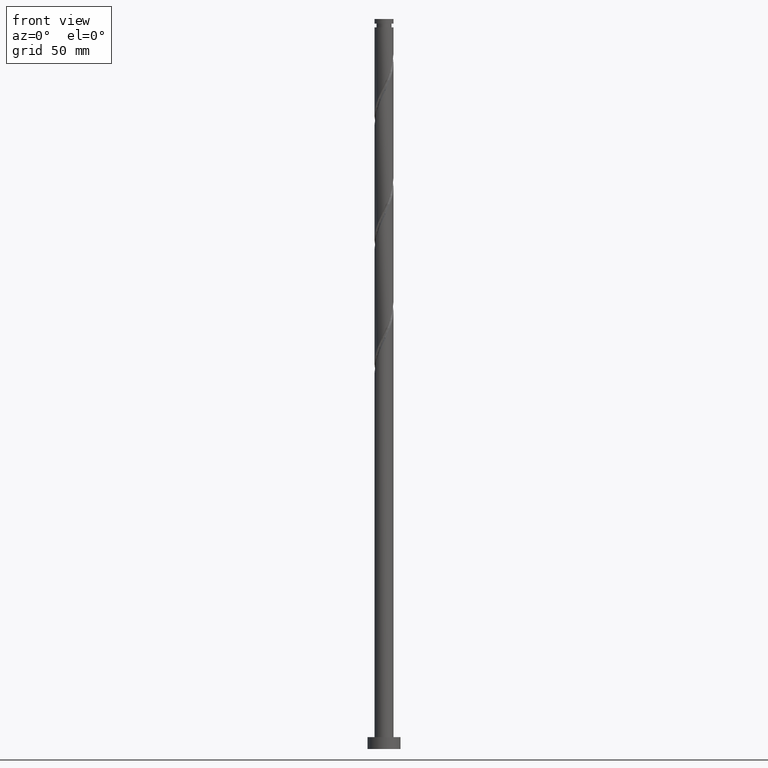
[diagram: clean part render]
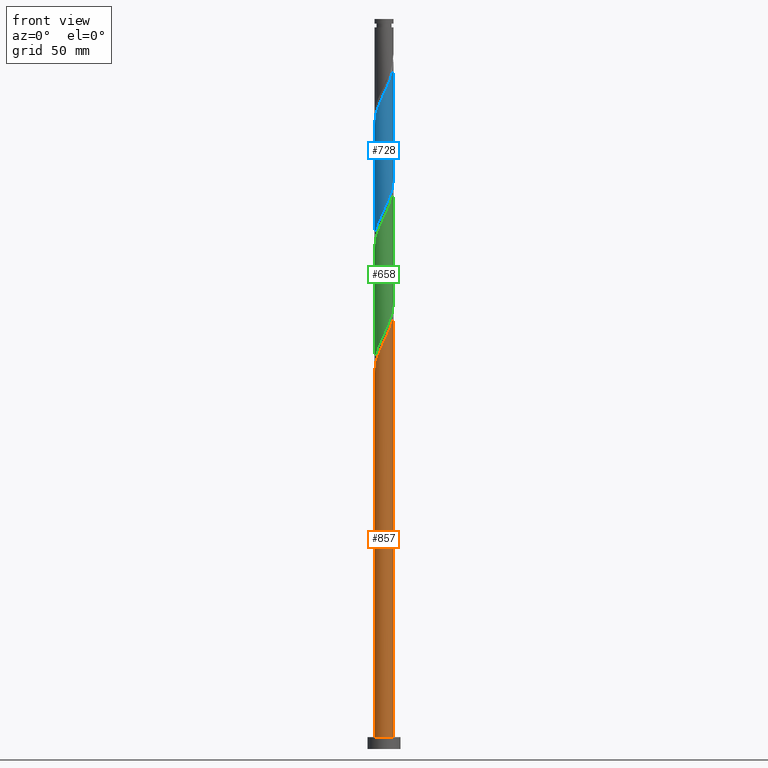
[diagram: same view with three faces highlighted in distinct colors, each labeled with its STEP entity id]
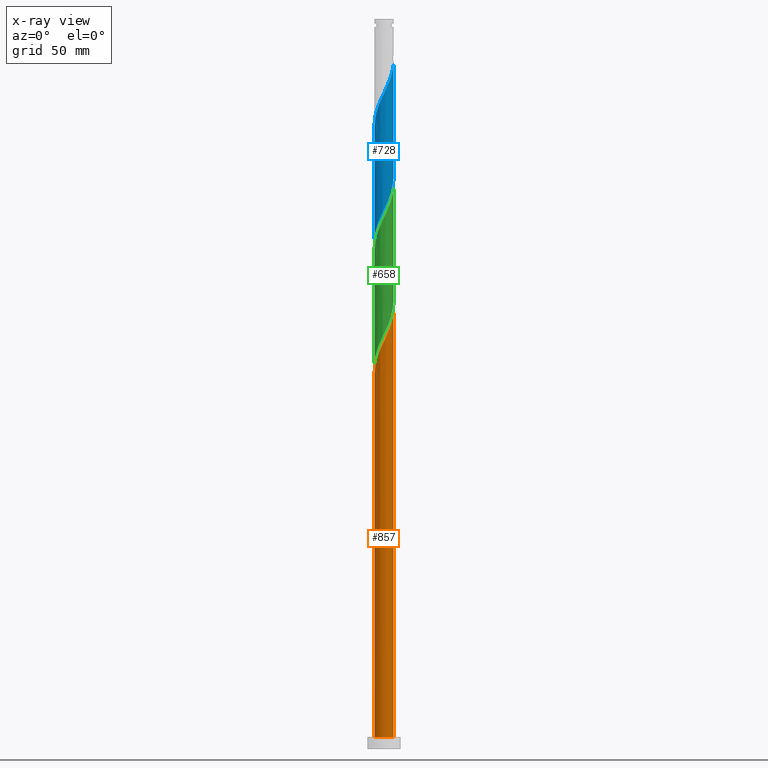
[diagram: x-ray of the same camera — body ghosted, the three highlighted faces saturated]
A machine part, front view with three faces highlighted in distinct colors.
The next image is the same camera in x-ray (body ghosted, the three faces saturated) — at least one of them is partly hidden behind the body in this view.
Their STEP definitions:

[orange] entity #857 — the highlighted cylindrical surface (edge-blend (fillet) strip) has radius 4 mm, axis along (-0, -0, -1).
#21 = CARTESIAN_POINT ( 'NONE',  ( 4.000000000000005329, 8.507690907269842176E-16, 185.6489505680038405 ) ) ;
#75 = CARTESIAN_POINT ( 'NONE',  ( -4.000000000000000000, 0.000000000000000000, 5.000000000000000000 ) ) ;
#86 = ORIENTED_EDGE ( 'NONE', *, *, #1697, .T. ) ;
#109 = CARTESIAN_POINT ( 'NONE',  ( -2.568487795263851403, -3.066410025678348195, 166.6984676459099433 ) ) ;
#114 = CARTESIAN_POINT ( 'NONE',  ( 0.000000000000000000, 0.000000000000000000, 5.000000000000000000 ) ) ;
#128 = CARTESIAN_POINT ( 'NONE',  ( 4.000000000000005329, -0.04813158866556942889, 185.5485878797787507 ) ) ;
#172 = EDGE_CURVE ( 'NONE', #1858, #399, #245, .T. ) ;
#239 = CARTESIAN_POINT ( 'NONE',  ( -4.000000000000000888, -0.4020151261036992163, 160.2372216469674129 ) ) ;
#245 = LINE ( 'NONE', #1870, #1467 ) ;
#249 = CARTESIAN_POINT ( 'NONE',  ( -3.458872505219860560, -2.058961887652578593, 163.8859676459098296 ) ) ;
#277 = CARTESIAN_POINT ( 'NONE',  ( 1.237667874093734355, -3.830313472238020545, 175.1359676459099433 ) ) ;
#281 = AXIS2_PLACEMENT_3D ( 'NONE', #1468, #412, #1756 ) ;
#361 = VERTEX_POINT ( 'NONE', #1432 ) ;
#390 = EDGE_LOOP ( 'NONE', ( #731, #904, #86, #1156 ) ) ;
#399 = VERTEX_POINT ( 'NONE', #820 ) ;
#412 = DIRECTION ( 'NONE',  ( -0.000000000000000000, -0.000000000000000000, -1.000000000000000000 ) ) ;
#415 = CARTESIAN_POINT ( 'NONE',  ( 2.417986421170497557, -3.186430866508033422, 177.9484676459100001 ) ) ;
#451 = CARTESIAN_POINT ( 'NONE',  ( -0.09624924134435053347, -3.998841842776566846, 172.3234676459099433 ) ) ;
#461 = CARTESIAN_POINT ( 'NONE',  ( 2.058961887652578593, -3.458872505219860560, 177.0109676459098864 ) ) ;
#530 =( BOUNDED_CURVE ( )  B_SPLINE_CURVE ( 2, ( #1303, #239, #1876, #673, #1863, #249, #697, #1596, #109, #1896, #565, #1162, #1927, #1194, #451, #739, #1051, #277, #584, #461, #415, #727, #1336, #1604, #1502, #1749, #1006, #595, #1615, #128, #21 ),
 .UNSPECIFIED., .F., .T. ) 
 B_SPLINE_CURVE_WITH_KNOTS ( ( 3, 2, 2, 2, 2, 2, 2, 2, 2, 2, 2, 2, 2, 2, 2, 3 ),
 ( 0.05453034012992233337, 0.06250000000000000000, 0.07142857142857139685, 0.08035714285714290472, 0.08928571428571430157, 0.09821428571428569843, 0.1071428571428570953, 0.1160714285714286031, 0.1250000000000000000, 0.1339285714285713969, 0.1428571428571429047, 0.1517857142857143016, 0.1607142857142856984, 0.1696428571428570953, 0.1785714285714286031, 0.1795303401299219170 ),
 .UNSPECIFIED. ) 
 CURVE ( )  GEOMETRIC_REPRESENTATION_ITEM ( )  RATIONAL_B_SPLINE_CURVE ( ( 0.9079949616362105180, 0.9039886423360742329, 0.9090909090909405910, 0.9033747362666157965, 0.9090909090909405910, 0.9033747362666157965, 0.9090909090909405910, 0.9033747362666157965, 0.9090909090909405910, 0.9033747362666157965, 0.9090909090909405910, 0.9033747362666157965, 0.9090909090909405910, 0.9033747362666157965, 0.9090909090909405910, 0.9033747362666157965, 0.9090909090909405910, 0.9033747362666157965, 0.9090909090909405910, 0.9033747362666157965, 0.9090909090909405910, 0.9033747362666157965, 0.9090909090909405910, 0.9033747362666157965, 0.9090909090909405910, 0.9033747362666157965, 0.9090909090909405910, 0.9033747362666157965, 0.9090909090909405910, 0.9084770030214824876, 0.9079949616362108511 ) ) 
 REPRESENTATION_ITEM ( '' )  );
#533 = LINE ( 'NONE', #848, #949 ) ;
#539 = DIRECTION ( 'NONE',  ( -0.000000000000000000, -0.000000000000000000, -1.000000000000000000 ) ) ;
#565 = CARTESIAN_POINT ( 'NONE',  ( -1.821750020894129296, -3.561071027285510393, 168.5734676459099148 ) ) ;
#584 = CARTESIAN_POINT ( 'NONE',  ( 1.648314880873156696, -3.644592988728941663, 176.0734676459099433 ) ) ;
#595 = CARTESIAN_POINT ( 'NONE',  ( 3.987997157791141500, -0.5468105079655641854, 184.5109676459099148 ) ) ;
#673 = CARTESIAN_POINT ( 'NONE',  ( -3.830313472238020545, -1.237667874093734355, 162.0109676459099148 ) ) ;
#697 = CARTESIAN_POINT ( 'NONE',  ( -3.186430866508033422, -2.417986421170498001, 164.8234676459098864 ) ) ;
#701 = DIRECTION ( 'NONE',  ( 0.000000000000000000, 0.000000000000000000, 1.000000000000000000 ) ) ;
#727 = CARTESIAN_POINT ( 'NONE',  ( 2.777010954688416078, -2.913989227796204506, 178.8859676459098864 ) ) ;
#731 = ORIENTED_EDGE ( 'NONE', *, *, #172, .F. ) ;
#739 = CARTESIAN_POINT ( 'NONE',  ( 0.3543120252768625633, -4.009686527761988195, 173.2609676459098296 ) ) ;
#820 = CARTESIAN_POINT ( 'NONE',  ( 4.000000000000000000, 4.898587196589412829E-16, 5.000000000000000000 ) ) ;
#848 = CARTESIAN_POINT ( 'NONE',  ( -4.000000000000000000, 0.000000000000000000, 309.0000000000000000 ) ) ;
#853 = DIRECTION ( 'NONE',  ( 1.000000000000000000, 0.000000000000000000, 0.000000000000000000 ) ) ;
#856 = CARTESIAN_POINT ( 'NONE',  ( 4.000000000000005329, 8.507690907269842176E-16, 185.6489505680038405 ) ) ;
#857 = ADVANCED_FACE ( 'NONE', ( #1745 ), #1578, .T. ) ;
#868 = EDGE_CURVE ( 'NONE', #1123, #399, #1118, .T. ) ;
#904 = ORIENTED_EDGE ( 'NONE', *, *, #1764, .F. ) ;
#949 = VECTOR ( 'NONE', #1008, 1000.000000000000000 ) ;
#1006 = CARTESIAN_POINT ( 'NONE',  ( 3.877165057846942986, -0.9836620935111636266, 183.5734676459099148 ) ) ;
#1008 = DIRECTION ( 'NONE',  ( -0.000000000000000000, -0.000000000000000000, -1.000000000000000000 ) ) ;
#1051 = CARTESIAN_POINT ( 'NONE',  ( 0.7959899496852986811, -3.920000000000005258, 174.1984676459100001 ) ) ;
#1118 = CIRCLE ( 'NONE', #1373, 4.000000000000000000 ) ;
#1123 = VERTEX_POINT ( 'NONE', #75 ) ;
#1156 = ORIENTED_EDGE ( 'NONE', *, *, #868, .T. ) ;
#1162 = CARTESIAN_POINT ( 'NONE',  ( -1.420513679056762291, -3.766332957902740475, 169.5109676459098580 ) ) ;
#1194 = CARTESIAN_POINT ( 'NONE',  ( -0.5468105079655638523, -3.987997157791142389, 171.3859676459098580 ) ) ;
#1303 = CARTESIAN_POINT ( 'NONE',  ( -4.000000000000005329, -1.350782503698106338E-15, 159.3989505680038974 ) ) ;
#1336 = CARTESIAN_POINT ( 'NONE',  ( 3.066410025678347750, -2.568487795263851403, 179.8234676459099148 ) ) ;
#1373 = AXIS2_PLACEMENT_3D ( 'NONE', #114, #701, #853 ) ;
#1432 = CARTESIAN_POINT ( 'NONE',  ( -4.000000000000005329, -1.350782503698106338E-15, 159.3989505680038974 ) ) ;
#1467 = VECTOR ( 'NONE', #539, 1000.000000000000000 ) ;
#1468 = CARTESIAN_POINT ( 'NONE',  ( 0.000000000000000000, 0.000000000000000000, 309.0000000000000000 ) ) ;
#1502 = CARTESIAN_POINT ( 'NONE',  ( 3.561071027285511281, -1.821750020894129740, 181.6984676459099148 ) ) ;
#1578 = CYLINDRICAL_SURFACE ( 'NONE', #281, 4.000000000000000000 ) ;
#1596 = CARTESIAN_POINT ( 'NONE',  ( -2.913989227796204506, -2.777010954688416078, 165.7609676459098864 ) ) ;
#1604 = CARTESIAN_POINT ( 'NONE',  ( 3.355809096668280311, -2.222986362731496079, 180.7609676459098580 ) ) ;
#1615 = CARTESIAN_POINT ( 'NONE',  ( 3.998841842776566846, -0.09624924134435083878, 185.4484676459099148 ) ) ;
#1697 = EDGE_CURVE ( 'NONE', #361, #1123, #533, .T. ) ;
#1745 = FACE_OUTER_BOUND ( 'NONE', #390, .T. ) ;
#1749 = CARTESIAN_POINT ( 'NONE',  ( 3.766332957902740475, -1.420513679056762291, 182.6359676459098580 ) ) ;
#1756 = DIRECTION ( 'NONE',  ( -1.000000000000000000, 0.000000000000000000, 0.000000000000000000 ) ) ;
#1764 = EDGE_CURVE ( 'NONE', #361, #1858, #530, .T. ) ;
#1858 = VERTEX_POINT ( 'NONE', #856 ) ;
#1863 = CARTESIAN_POINT ( 'NONE',  ( -3.644592988728941663, -1.648314880873157140, 162.9484676459099148 ) ) ;
#1870 = CARTESIAN_POINT ( 'NONE',  ( 4.000000000000000000, 4.898587196589412829E-16, 309.0000000000000000 ) ) ;
#1876 = CARTESIAN_POINT ( 'NONE',  ( -3.920000000000005258, -0.7959899496852989031, 161.0734676459098864 ) ) ;
#1896 = CARTESIAN_POINT ( 'NONE',  ( -2.222986362731495635, -3.355809096668280311, 167.6359676459099148 ) ) ;
#1927 = CARTESIAN_POINT ( 'NONE',  ( -0.9836620935111634045, -3.877165057846942986, 170.4484676459098864 ) ) ;

[blue] entity #728 — the highlighted cylindrical surface (edge-blend (fillet) strip) has radius 4 mm, axis along (-0, -0, -1).
#37 = CARTESIAN_POINT ( 'NONE',  ( 2.058961887652578593, -3.458872505219860560, 282.0109676459097727 ) ) ;
#42 = CARTESIAN_POINT ( 'NONE',  ( -3.186430866508033422, -2.417986421170498001, 269.8234676459099433 ) ) ;
#49 = CARTESIAN_POINT ( 'NONE',  ( -2.777010954688413413, -2.913989227796198733, 222.0109676459098864 ) ) ;
#57 = CARTESIAN_POINT ( 'NONE',  ( -3.987997157791136171, -0.5468105079655616318, 216.3859676459098864 ) ) ;
#64 = CARTESIAN_POINT ( 'NONE',  ( 3.919999999999999485, -0.7959899496852991252, 239.8234676459098864 ) ) ;
#181 = CARTESIAN_POINT ( 'NONE',  ( -1.821750020894129296, -3.561071027285510393, 273.5734676459099433 ) ) ;
#190 = CARTESIAN_POINT ( 'NONE',  ( -4.000000000000009770, -0.4020151261036592483, 265.2372216469672708 ) ) ;
#212 = CARTESIAN_POINT ( 'NONE',  ( 3.561071027285511281, -1.821750020894129740, 286.6984676459100001 ) ) ;
#213 = CARTESIAN_POINT ( 'NONE',  ( -2.417986421170494449, -3.186430866508027204, 222.9484676459099148 ) ) ;
#233 = ORIENTED_EDGE ( 'NONE', *, *, #779, .F. ) ;
#248 = CARTESIAN_POINT ( 'NONE',  ( 3.458872505219855231, -2.058961887652577261, 237.0109676459098864 ) ) ;
#253 = CARTESIAN_POINT ( 'NONE',  ( 4.000000000000000000, 4.898587196589412829E-16, 309.0000000000000000 ) ) ;
#258 = CARTESIAN_POINT ( 'NONE',  ( -3.999999999999999112, 2.380660876683418675E-15, 215.2479847238159039 ) ) ;
#341 = CARTESIAN_POINT ( 'NONE',  ( 0.3543120252768625633, -4.009686527761988195, 278.2609676459098864 ) ) ;
#348 = CARTESIAN_POINT ( 'NONE',  ( 3.066410025678347750, -2.568487795263851403, 284.8234676459100001 ) ) ;
#349 = CARTESIAN_POINT ( 'NONE',  ( -3.877165057846936325, -0.9836620935111599628, 217.3234676459098296 ) ) ;
#355 = CARTESIAN_POINT ( 'NONE',  ( -2.913989227796204506, -2.777010954688416078, 270.7609676459098296 ) ) ;
#367 = CARTESIAN_POINT ( 'NONE',  ( 3.987997157791141500, -0.5468105079655641854, 289.5109676459098864 ) ) ;
#379 = CARTESIAN_POINT ( 'NONE',  ( 3.877165057846942986, -0.9836620935111636266, 288.5734676459099433 ) ) ;
#380 = CARTESIAN_POINT ( 'NONE',  ( -2.058961887652577261, -3.458872505219855675, 223.8859676459099148 ) ) ;
#386 = FACE_OUTER_BOUND ( 'NONE', #803, .T. ) ;
#393 = CARTESIAN_POINT ( 'NONE',  ( -1.648314880873155364, -3.644592988728935001, 224.8234676459098864 ) ) ;
#477 =( BOUNDED_CURVE ( )  B_SPLINE_CURVE ( 2, ( #1841, #1584, #64, #942, #1428, #248, #1706, #1729, #519, #961, #543, #1112, #837, #815, #1717, #1860, #1395, #1415, #393, #380, #213, #49, #1572, #502, #1096, #974, #349, #57, #1541, #1605, #258 ),
 .UNSPECIFIED., .F., .F. ) 
 B_SPLINE_CURVE_WITH_KNOTS ( ( 3, 2, 2, 2, 2, 2, 2, 2, 2, 2, 2, 2, 2, 2, 2, 3 ),
 ( 0.5545303401299219725, 0.5625000000000000000, 0.5714285714285713969, 0.5803571428571429047, 0.5892857142857143016, 0.5982142857142856984, 0.6071428571428570953, 0.6160714285714286031, 0.6250000000000000000, 0.6339285714285713969, 0.6428571428571429047, 0.6517857142857143016, 0.6607142857142856984, 0.6696428571428570953, 0.6785714285714286031, 0.6795303401299223056 ),
 .UNSPECIFIED. ) 
 CURVE ( )  GEOMETRIC_REPRESENTATION_ITEM ( )  RATIONAL_B_SPLINE_CURVE ( ( 0.9079949616362046338, 0.9039886423360676826, 0.9090909090909344847, 0.9033747362666094682, 0.9090909090909344847, 0.9033747362666094682, 0.9090909090909344847, 0.9033747362666094682, 0.9090909090909344847, 0.9033747362666094682, 0.9090909090909344847, 0.9033747362666094682, 0.9090909090909344847, 0.9033747362666094682, 0.9090909090909344847, 0.9033747362666094682, 0.9090909090909344847, 0.9033747362666094682, 0.9090909090909344847, 0.9033747362666094682, 0.9090909090909344847, 0.9033747362666094682, 0.9090909090909344847, 0.9033747362666094682, 0.9090909090909344847, 0.9033747362666094682, 0.9090909090909344847, 0.9033747362666094682, 0.9090909090909344847, 0.9084770030214760483, 0.9079949616362044118 ) ) 
 REPRESENTATION_ITEM ( '' )  );
#495 = CARTESIAN_POINT ( 'NONE',  ( 1.648314880873156696, -3.644592988728941663, 281.0734676459098864 ) ) ;
#501 = CARTESIAN_POINT ( 'NONE',  ( -4.000000000000005329, -7.612144495978278492E-16, 264.3989505680038405 ) ) ;
#502 = CARTESIAN_POINT ( 'NONE',  ( -3.355809096668276759, -2.222986362731491639, 220.1359676459098296 ) ) ;
#519 = CARTESIAN_POINT ( 'NONE',  ( 2.568487795263845186, -3.066410025678344198, 234.1984676459099148 ) ) ;
#528 = ORIENTED_EDGE ( 'NONE', *, *, #983, .T. ) ;
#529 = CARTESIAN_POINT ( 'NONE',  ( -4.000000000000005329, -7.612144495978278492E-16, 264.3989505680038405 ) ) ;
#543 = CARTESIAN_POINT ( 'NONE',  ( 1.821750020894124855, -3.561071027285505952, 232.3234676459098864 ) ) ;
#560 = VERTEX_POINT ( 'NONE', #1420 ) ;
#582 = DIRECTION ( 'NONE',  ( -0.000000000000000000, -0.000000000000000000, -1.000000000000000000 ) ) ;
#603 = LINE ( 'NONE', #1049, #1102 ) ;
#630 = CARTESIAN_POINT ( 'NONE',  ( 0.7959899496852986811, -3.920000000000005258, 279.1984676459099433 ) ) ;
#716 = VECTOR ( 'NONE', #582, 1000.000000000000000 ) ;
#728 = ADVANCED_FACE ( 'NONE', ( #386 ), #1319, .T. ) ;
#775 = CARTESIAN_POINT ( 'NONE',  ( -0.9836620935111634045, -3.877165057846942986, 275.4484676459099433 ) ) ;
#779 = EDGE_CURVE ( 'NONE', #1891, #560, #1433, .T. ) ;
#803 = EDGE_LOOP ( 'NONE', ( #233, #1712, #528, #1289 ) ) ;
#813 = VERTEX_POINT ( 'NONE', #1444 ) ;
#814 = CARTESIAN_POINT ( 'NONE',  ( 3.766332957902740475, -1.420513679056762291, 287.6359676459097727 ) ) ;
#815 = CARTESIAN_POINT ( 'NONE',  ( 0.5468105079655614098, -3.987997157791136171, 229.5109676459098580 ) ) ;
#826 = CARTESIAN_POINT ( 'NONE',  ( 4.000000000000005329, 2.612010366267056800E-16, 290.6489505680038974 ) ) ;
#833 = DIRECTION ( 'NONE',  ( -0.000000000000000000, -0.000000000000000000, -1.000000000000000000 ) ) ;
#837 = CARTESIAN_POINT ( 'NONE',  ( 0.9836620935111599628, -3.877165057846936325, 230.4484676459098580 ) ) ;
#934 = CARTESIAN_POINT ( 'NONE',  ( 2.777010954688416078, -2.913989227796204506, 283.8859676459098296 ) ) ;
#941 = CARTESIAN_POINT ( 'NONE',  ( -0.09624924134435053347, -3.998841842776566846, 277.3234676459099433 ) ) ;
#942 = CARTESIAN_POINT ( 'NONE',  ( 3.830313472238015660, -1.237667874093734355, 238.8859676459099433 ) ) ;
#955 = AXIS2_PLACEMENT_3D ( 'NONE', #1308, #833, #1167 ) ;
#961 = CARTESIAN_POINT ( 'NONE',  ( 2.222986362731491639, -3.355809096668276759, 233.2609676459098864 ) ) ;
#974 = CARTESIAN_POINT ( 'NONE',  ( -3.766332957902735146, -1.420513679056758294, 218.2609676459099148 ) ) ;
#983 = EDGE_CURVE ( 'NONE', #1582, #813, #603, .T. ) ;
#1038 = DIRECTION ( 'NONE',  ( -0.000000000000000000, -0.000000000000000000, -1.000000000000000000 ) ) ;
#1049 = CARTESIAN_POINT ( 'NONE',  ( -4.000000000000000000, 0.000000000000000000, 309.0000000000000000 ) ) ;
#1081 = CARTESIAN_POINT ( 'NONE',  ( -0.5468105079655638523, -3.987997157791142389, 276.3859676459098296 ) ) ;
#1088 = CARTESIAN_POINT ( 'NONE',  ( -2.222986362731495635, -3.355809096668280311, 272.6359676459098864 ) ) ;
#1094 = CARTESIAN_POINT ( 'NONE',  ( -3.458872505219860560, -2.058961887652578593, 268.8859676459098864 ) ) ;
#1096 = CARTESIAN_POINT ( 'NONE',  ( -3.561071027285505952, -1.821750020894125299, 219.1984676459098580 ) ) ;
#1102 = VECTOR ( 'NONE', #1038, 1000.000000000000000 ) ;
#1103 = CARTESIAN_POINT ( 'NONE',  ( 3.355809096668280311, -2.222986362731496079, 285.7609676459098864 ) ) ;
#1112 = CARTESIAN_POINT ( 'NONE',  ( 1.420513679056758294, -3.766332957902735146, 231.3859676459099148 ) ) ;
#1167 = DIRECTION ( 'NONE',  ( -1.000000000000000000, 0.000000000000000000, 0.000000000000000000 ) ) ;
#1221 = CARTESIAN_POINT ( 'NONE',  ( -3.830313472238020545, -1.237667874093734355, 267.0109676459098864 ) ) ;
#1248 = CARTESIAN_POINT ( 'NONE',  ( -2.568487795263851403, -3.066410025678348195, 271.6984676459100001 ) ) ;
#1250 =( BOUNDED_CURVE ( )  B_SPLINE_CURVE ( 2, ( #501, #190, #1380, #1221, #1696, #1094, #42, #355, #1248, #1088, #181, #1826, #775, #1081, #941, #341, #630, #1374, #495, #37, #1687, #934, #348, #1103, #212, #814, #379, #367, #1427, #1705, #826 ),
 .UNSPECIFIED., .F., .T. ) 
 B_SPLINE_CURVE_WITH_KNOTS ( ( 3, 2, 2, 2, 2, 2, 2, 2, 2, 2, 2, 2, 2, 2, 2, 3 ),
 ( 0.5545303401299215285, 0.5625000000000000000, 0.5714285714285713969, 0.5803571428571427937, 0.5892857142857143016, 0.5982142857142856984, 0.6071428571428572063, 0.6160714285714286031, 0.6250000000000000000, 0.6339285714285713969, 0.6428571428571427937, 0.6517857142857143016, 0.6607142857142856984, 0.6696428571428572063, 0.6785714285714286031, 0.6795303401299225277 ),
 .UNSPECIFIED. ) 
 CURVE ( )  GEOMETRIC_REPRESENTATION_ITEM ( )  RATIONAL_B_SPLINE_CURVE ( ( 0.9079949616362111842, 0.9039886423360736778, 0.9090909090909405910, 0.9033747362666157965, 0.9090909090909405910, 0.9033747362666157965, 0.9090909090909405910, 0.9033747362666157965, 0.9090909090909405910, 0.9033747362666157965, 0.9090909090909405910, 0.9033747362666157965, 0.9090909090909405910, 0.9033747362666157965, 0.9090909090909405910, 0.9033747362666157965, 0.9090909090909405910, 0.9033747362666157965, 0.9090909090909405910, 0.9033747362666157965, 0.9090909090909405910, 0.9033747362666157965, 0.9090909090909405910, 0.9033747362666157965, 0.9090909090909405910, 0.9033747362666157965, 0.9090909090909405910, 0.9033747362666157965, 0.9090909090909405910, 0.9084770030214821546, 0.9079949616362102960 ) ) 
 REPRESENTATION_ITEM ( '' )  );
#1289 = ORIENTED_EDGE ( 'NONE', *, *, #1339, .F. ) ;
#1308 = CARTESIAN_POINT ( 'NONE',  ( 0.000000000000000000, 0.000000000000000000, 309.0000000000000000 ) ) ;
#1319 = CYLINDRICAL_SURFACE ( 'NONE', #955, 4.000000000000000000 ) ;
#1339 = EDGE_CURVE ( 'NONE', #560, #813, #477, .T. ) ;
#1347 = CARTESIAN_POINT ( 'NONE',  ( 4.000000000000005329, 2.612010366267056800E-16, 290.6489505680038974 ) ) ;
#1374 = CARTESIAN_POINT ( 'NONE',  ( 1.237667874093734355, -3.830313472238020545, 280.1359676459099433 ) ) ;
#1380 = CARTESIAN_POINT ( 'NONE',  ( -3.920000000000005258, -0.7959899496852989031, 266.0734676459099433 ) ) ;
#1395 = CARTESIAN_POINT ( 'NONE',  ( -0.7959899496852989031, -3.919999999999999485, 226.6984676459098864 ) ) ;
#1415 = CARTESIAN_POINT ( 'NONE',  ( -1.237667874093734355, -3.830313472238015660, 225.7609676459098580 ) ) ;
#1420 = CARTESIAN_POINT ( 'NONE',  ( 3.999999999999999112, -2.828434082329203080E-15, 241.4979847238159607 ) ) ;
#1427 = CARTESIAN_POINT ( 'NONE',  ( 3.998841842776566846, -0.09624924134435083878, 290.4484676459099433 ) ) ;
#1428 = CARTESIAN_POINT ( 'NONE',  ( 3.644592988728935001, -1.648314880873155808, 237.9484676459099148 ) ) ;
#1433 = LINE ( 'NONE', #253, #716 ) ;
#1444 = CARTESIAN_POINT ( 'NONE',  ( -3.999999999999999112, 2.380660876683419069E-15, 215.2479847238159039 ) ) ;
#1531 = EDGE_CURVE ( 'NONE', #1582, #1891, #1250, .T. ) ;
#1541 = CARTESIAN_POINT ( 'NONE',  ( -3.998841842776559741, -0.09624924134434913181, 215.4484676459098580 ) ) ;
#1572 = CARTESIAN_POINT ( 'NONE',  ( -3.066410025678343754, -2.568487795263845186, 221.0734676459098864 ) ) ;
#1582 = VERTEX_POINT ( 'NONE', #529 ) ;
#1584 = CARTESIAN_POINT ( 'NONE',  ( 4.000000000000000000, -0.4020151261036822854, 240.6597136448523315 ) ) ;
#1605 = CARTESIAN_POINT ( 'NONE',  ( -4.000000000000000000, -0.04813158866554831383, 215.3483474120410222 ) ) ;
#1687 = CARTESIAN_POINT ( 'NONE',  ( 2.417986421170497557, -3.186430866508033422, 282.9484676459099433 ) ) ;
#1696 = CARTESIAN_POINT ( 'NONE',  ( -3.644592988728941663, -1.648314880873157140, 267.9484676459100001 ) ) ;
#1705 = CARTESIAN_POINT ( 'NONE',  ( 4.000000000000006217, -0.04813158866553877285, 290.5485878797788359 ) ) ;
#1706 = CARTESIAN_POINT ( 'NONE',  ( 3.186430866508027204, -2.417986421170494893, 236.0734676459098864 ) ) ;
#1712 = ORIENTED_EDGE ( 'NONE', *, *, #1531, .F. ) ;
#1717 = CARTESIAN_POINT ( 'NONE',  ( 0.09624924134434893752, -3.998841842776559741, 228.5734676459098580 ) ) ;
#1729 = CARTESIAN_POINT ( 'NONE',  ( 2.913989227796198733, -2.777010954688413413, 235.1359676459098864 ) ) ;
#1826 = CARTESIAN_POINT ( 'NONE',  ( -1.420513679056762291, -3.766332957902740475, 274.5109676459097727 ) ) ;
#1841 = CARTESIAN_POINT ( 'NONE',  ( 3.999999999999999112, -2.828434082329203080E-15, 241.4979847238159607 ) ) ;
#1860 = CARTESIAN_POINT ( 'NONE',  ( -0.3543120252768637291, -4.009686527761982866, 227.6359676459099433 ) ) ;
#1891 = VERTEX_POINT ( 'NONE', #1347 ) ;

[green] entity #658 — the highlighted cylindrical surface (edge-blend (fillet) strip) has radius 4 mm, axis along (-0, -0, -1).
#6 = CARTESIAN_POINT ( 'NONE',  ( 3.830313472238015660, -1.237667874093734355, 186.3859676459098580 ) ) ;
#17 = CARTESIAN_POINT ( 'NONE',  ( -1.648314880873155364, -3.644592988728935001, 172.3234676459099148 ) ) ;
#81 = CARTESIAN_POINT ( 'NONE',  ( -3.998841842776559741, -0.09624924134434913181, 162.9484676459098580 ) ) ;
#90 = CARTESIAN_POINT ( 'NONE',  ( 0.3543120252768625633, -4.009686527761988195, 225.7609676459098580 ) ) ;
#121 = VERTEX_POINT ( 'NONE', #402 ) ;
#131 = ORIENTED_EDGE ( 'NONE', *, *, #720, .F. ) ;
#134 = CARTESIAN_POINT ( 'NONE',  ( -2.777010954688413413, -2.913989227796198733, 169.5109676459099148 ) ) ;
#152 = VERTEX_POINT ( 'NONE', #1882 ) ;
#156 = CARTESIAN_POINT ( 'NONE',  ( 3.186430866508027204, -2.417986421170494893, 183.5734676459098580 ) ) ;
#162 = ORIENTED_EDGE ( 'NONE', *, *, #1817, .T. ) ;
#211 = ORIENTED_EDGE ( 'NONE', *, *, #1607, .F. ) ;
#225 = CARTESIAN_POINT ( 'NONE',  ( -3.644592988728941663, -1.648314880873157140, 215.4484676459099433 ) ) ;
#228 = CARTESIAN_POINT ( 'NONE',  ( 3.766332957902740475, -1.420513679056762291, 235.1359676459098296 ) ) ;
#237 = CARTESIAN_POINT ( 'NONE',  ( -2.568487795263851403, -3.066410025678348195, 219.1984676459099433 ) ) ;
#238 = CARTESIAN_POINT ( 'NONE',  ( -4.000000000000005329, -1.350782503698106338E-15, 211.8989505680038690 ) ) ;
#264 = LINE ( 'NONE', #725, #931 ) ;
#272 = CARTESIAN_POINT ( 'NONE',  ( 2.913989227796198733, -2.777010954688413413, 182.6359676459098864 ) ) ;
#274 = DIRECTION ( 'NONE',  ( -0.000000000000000000, -0.000000000000000000, -1.000000000000000000 ) ) ;
#402 = CARTESIAN_POINT ( 'NONE',  ( 4.000000000000005329, 8.507690907269842176E-16, 238.1489505680038405 ) ) ;
#432 = CARTESIAN_POINT ( 'NONE',  ( 2.222986362731491639, -3.355809096668276759, 180.7609676459098864 ) ) ;
#541 = ORIENTED_EDGE ( 'NONE', *, *, #636, .F. ) ;
#542 = CARTESIAN_POINT ( 'NONE',  ( -2.913989227796204506, -2.777010954688416078, 218.2609676459098580 ) ) ;
#548 = CARTESIAN_POINT ( 'NONE',  ( -4.000000000000000000, -8.768891943896607661E-15, 162.7479847238159891 ) ) ;
#554 = CARTESIAN_POINT ( 'NONE',  ( 0.7959899496852986811, -3.920000000000005258, 226.6984676459099433 ) ) ;
#570 = DIRECTION ( 'NONE',  ( -0.000000000000000000, -0.000000000000000000, -1.000000000000000000 ) ) ;
#590 = CARTESIAN_POINT ( 'NONE',  ( -3.561071027285505952, -1.821750020894125299, 166.6984676459098580 ) ) ;
#600 = CARTESIAN_POINT ( 'NONE',  ( 3.644592988728935001, -1.648314880873155808, 185.4484676459099148 ) ) ;
#610 = CARTESIAN_POINT ( 'NONE',  ( -2.058961887652577261, -3.458872505219855675, 171.3859676459098296 ) ) ;
#636 = EDGE_CURVE ( 'NONE', #152, #893, #782, .T. ) ;
#658 = ADVANCED_FACE ( 'NONE', ( #1155 ), #1277, .T. ) ;
#670 = CARTESIAN_POINT ( 'NONE',  ( -2.222986362731495635, -3.355809096668280311, 220.1359676459098580 ) ) ;
#706 = CARTESIAN_POINT ( 'NONE',  ( 1.648314880873156696, -3.644592988728941663, 228.5734676459099717 ) ) ;
#718 = CARTESIAN_POINT ( 'NONE',  ( 3.355809096668280311, -2.222986362731496079, 233.2609676459098580 ) ) ;
#720 = EDGE_CURVE ( 'NONE', #121, #152, #264, .T. ) ;
#725 = CARTESIAN_POINT ( 'NONE',  ( 4.000000000000000000, 4.898587196589412829E-16, 309.0000000000000000 ) ) ;
#734 = CARTESIAN_POINT ( 'NONE',  ( -3.877165057846936325, -0.9836620935111599628, 164.8234676459098864 ) ) ;
#744 = CARTESIAN_POINT ( 'NONE',  ( -0.3543120252768637291, -4.009686527761982866, 175.1359676459098864 ) ) ;
#782 =( BOUNDED_CURVE ( )  B_SPLINE_CURVE ( 2, ( #1342, #1465, #896, #6, #600, #1479, #156, #272, #1488, #432, #1199, #1317, #1779, #1175, #1035, #744, #1329, #1790, #17, #610, #877, #134, #863, #1022, #590, #1623, #734, #1003, #81, #842, #1421 ),
 .UNSPECIFIED., .F., .T. ) 
 B_SPLINE_CURVE_WITH_KNOTS ( ( 3, 2, 2, 2, 2, 2, 2, 2, 2, 2, 2, 2, 2, 2, 2, 3 ),
 ( 0.8045303401299219725, 0.8125000000000000000, 0.8214285714285713969, 0.8303571428571429047, 0.8392857142857143016, 0.8482142857142856984, 0.8571428571428570953, 0.8660714285714286031, 0.8750000000000000000, 0.8839285714285713969, 0.8928571428571429047, 0.9017857142857143016, 0.9107142857142856984, 0.9196428571428570953, 0.9285714285714286031, 0.9295303401299217505 ),
 .UNSPECIFIED. ) 
 CURVE ( )  GEOMETRIC_REPRESENTATION_ITEM ( )  RATIONAL_B_SPLINE_CURVE ( ( 0.9079949616362046338, 0.9039886423360676826, 0.9090909090909344847, 0.9033747362666094682, 0.9090909090909344847, 0.9033747362666094682, 0.9090909090909344847, 0.9033747362666094682, 0.9090909090909344847, 0.9033747362666094682, 0.9090909090909344847, 0.9033747362666094682, 0.9090909090909344847, 0.9033747362666094682, 0.9090909090909344847, 0.9033747362666094682, 0.9090909090909344847, 0.9033747362666094682, 0.9090909090909344847, 0.9033747362666094682, 0.9090909090909344847, 0.9033747362666094682, 0.9090909090909344847, 0.9033747362666094682, 0.9090909090909344847, 0.9033747362666094682, 0.9090909090909344847, 0.9033747362666094682, 0.9090909090909344847, 0.9084770030214763814, 0.9079949616362048559 ) ) 
 REPRESENTATION_ITEM ( '' )  );
#817 = CARTESIAN_POINT ( 'NONE',  ( 3.066410025678347750, -2.568487795263851403, 232.3234676459099148 ) ) ;
#828 = CARTESIAN_POINT ( 'NONE',  ( 3.987997157791141500, -0.5468105079655641854, 237.0109676459098580 ) ) ;
#842 = CARTESIAN_POINT ( 'NONE',  ( -4.000000000000000000, -0.04813158866557619431, 162.8483474120410506 ) ) ;
#859 = CARTESIAN_POINT ( 'NONE',  ( 4.000000000000005329, 8.507690907269842176E-16, 238.1489505680038405 ) ) ;
#863 = CARTESIAN_POINT ( 'NONE',  ( -3.066410025678343754, -2.568487795263845186, 168.5734676459098864 ) ) ;
#877 = CARTESIAN_POINT ( 'NONE',  ( -2.417986421170494449, -3.186430866508027204, 170.4484676459098864 ) ) ;
#893 = VERTEX_POINT ( 'NONE', #548 ) ;
#896 = CARTESIAN_POINT ( 'NONE',  ( 3.919999999999999485, -0.7959899496852991252, 187.3234676459099717 ) ) ;
#931 = VECTOR ( 'NONE', #274, 1000.000000000000000 ) ;
#960 = CARTESIAN_POINT ( 'NONE',  ( -4.000000000000005329, -1.350782503698106338E-15, 211.8989505680038690 ) ) ;
#963 = CARTESIAN_POINT ( 'NONE',  ( 3.561071027285511281, -1.821750020894129740, 234.1984676459099148 ) ) ;
#993 = EDGE_LOOP ( 'NONE', ( #131, #211, #162, #541 ) ) ;
#1003 = CARTESIAN_POINT ( 'NONE',  ( -3.987997157791136171, -0.5468105079655616318, 163.8859676459099148 ) ) ;
#1022 = CARTESIAN_POINT ( 'NONE',  ( -3.355809096668276759, -2.222986362731491639, 167.6359676459098580 ) ) ;
#1035 = CARTESIAN_POINT ( 'NONE',  ( 0.09624924134434893752, -3.998841842776559741, 176.0734676459098580 ) ) ;
#1041 = DIRECTION ( 'NONE',  ( -0.000000000000000000, -0.000000000000000000, -1.000000000000000000 ) ) ;
#1124 = CARTESIAN_POINT ( 'NONE',  ( -0.9836620935111634045, -3.877165057846942986, 222.9484676459099148 ) ) ;
#1127 = CARTESIAN_POINT ( 'NONE',  ( 1.237667874093734355, -3.830313472238020545, 227.6359676459098296 ) ) ;
#1137 = VERTEX_POINT ( 'NONE', #238 ) ;
#1138 = CARTESIAN_POINT ( 'NONE',  ( -1.821750020894129296, -3.561071027285510393, 221.0734676459099717 ) ) ;
#1140 = CARTESIAN_POINT ( 'NONE',  ( -0.09624924134435053347, -3.998841842776566846, 224.8234676459099433 ) ) ;
#1150 = VECTOR ( 'NONE', #1041, 1000.000000000000000 ) ;
#1151 = CARTESIAN_POINT ( 'NONE',  ( 2.777010954688416078, -2.913989227796204506, 231.3859676459098580 ) ) ;
#1155 = FACE_OUTER_BOUND ( 'NONE', #993, .T. ) ;
#1170 = CARTESIAN_POINT ( 'NONE',  ( 4.000000000000005329, -0.04813158866556663945, 238.0485878797787791 ) ) ;
#1175 = CARTESIAN_POINT ( 'NONE',  ( 0.5468105079655614098, -3.987997157791136171, 177.0109676459098864 ) ) ;
#1199 = CARTESIAN_POINT ( 'NONE',  ( 1.821750020894124855, -3.561071027285505952, 179.8234676459099148 ) ) ;
#1277 = CYLINDRICAL_SURFACE ( 'NONE', #1526, 4.000000000000000000 ) ;
#1282 = CARTESIAN_POINT ( 'NONE',  ( -4.000000000000005329, -0.4020151261036785661, 212.7372216469674413 ) ) ;
#1284 = CARTESIAN_POINT ( 'NONE',  ( 3.998841842776566846, -0.09624924134435083878, 237.9484676459099433 ) ) ;
#1317 = CARTESIAN_POINT ( 'NONE',  ( 1.420513679056758294, -3.766332957902735146, 178.8859676459098864 ) ) ;
#1329 = CARTESIAN_POINT ( 'NONE',  ( -0.7959899496852989031, -3.919999999999999485, 174.1984676459098296 ) ) ;
#1342 = CARTESIAN_POINT ( 'NONE',  ( 3.999999999999999112, -2.828434082329203080E-15, 188.9979847238159891 ) ) ;
#1398 =( BOUNDED_CURVE ( )  B_SPLINE_CURVE ( 2, ( #960, #1282, #1559, #1874, #225, #1571, #1859, #542, #237, #670, #1138, #1728, #1124, #1751, #1140, #90, #554, #1127, #706, #1562, #1719, #1151, #817, #718, #963, #228, #1886, #828, #1284, #1170, #859 ),
 .UNSPECIFIED., .F., .T. ) 
 B_SPLINE_CURVE_WITH_KNOTS ( ( 3, 2, 2, 2, 2, 2, 2, 2, 2, 2, 2, 2, 2, 2, 2, 3 ),
 ( 0.3045303401299219170, 0.3125000000000000000, 0.3214285714285713969, 0.3303571428571429047, 0.3392857142857143016, 0.3482142857142856984, 0.3571428571428570953, 0.3660714285714286031, 0.3750000000000000000, 0.3839285714285713969, 0.3928571428571429047, 0.4017857142857143016, 0.4107142857142856984, 0.4196428571428570953, 0.4285714285714286031, 0.4295303401299219725 ),
 .UNSPECIFIED. ) 
 CURVE ( )  GEOMETRIC_REPRESENTATION_ITEM ( )  RATIONAL_B_SPLINE_CURVE ( ( 0.9079949616362108511, 0.9039886423360738998, 0.9090909090909405910, 0.9033747362666157965, 0.9090909090909405910, 0.9033747362666157965, 0.9090909090909405910, 0.9033747362666157965, 0.9090909090909405910, 0.9033747362666157965, 0.9090909090909405910, 0.9033747362666157965, 0.9090909090909405910, 0.9033747362666157965, 0.9090909090909405910, 0.9033747362666157965, 0.9090909090909405910, 0.9033747362666157965, 0.9090909090909405910, 0.9033747362666157965, 0.9090909090909405910, 0.9033747362666157965, 0.9090909090909405910, 0.9033747362666157965, 0.9090909090909405910, 0.9033747362666157965, 0.9090909090909405910, 0.9033747362666157965, 0.9090909090909405910, 0.9084770030214824876, 0.9079949616362109621 ) ) 
 REPRESENTATION_ITEM ( '' )  );
#1421 = CARTESIAN_POINT ( 'NONE',  ( -4.000000000000000000, -8.768891943896607661E-15, 162.7479847238159891 ) ) ;
#1465 = CARTESIAN_POINT ( 'NONE',  ( 4.000000000000000000, -0.4020151261036822854, 188.1597136448523599 ) ) ;
#1479 = CARTESIAN_POINT ( 'NONE',  ( 3.458872505219855231, -2.058961887652577261, 184.5109676459099148 ) ) ;
#1488 = CARTESIAN_POINT ( 'NONE',  ( 2.568487795263845186, -3.066410025678344198, 181.6984676459099148 ) ) ;
#1526 = AXIS2_PLACEMENT_3D ( 'NONE', #1590, #570, #1890 ) ;
#1559 = CARTESIAN_POINT ( 'NONE',  ( -3.920000000000005258, -0.7959899496852989031, 213.5734676459099433 ) ) ;
#1562 = CARTESIAN_POINT ( 'NONE',  ( 2.058961887652578593, -3.458872505219860560, 229.5109676459098296 ) ) ;
#1571 = CARTESIAN_POINT ( 'NONE',  ( -3.458872505219860560, -2.058961887652578593, 216.3859676459098296 ) ) ;
#1590 = CARTESIAN_POINT ( 'NONE',  ( 0.000000000000000000, 0.000000000000000000, 309.0000000000000000 ) ) ;
#1607 = EDGE_CURVE ( 'NONE', #1137, #121, #1398, .T. ) ;
#1623 = CARTESIAN_POINT ( 'NONE',  ( -3.766332957902735146, -1.420513679056758294, 165.7609676459098296 ) ) ;
#1719 = CARTESIAN_POINT ( 'NONE',  ( 2.417986421170497557, -3.186430866508033422, 230.4484676459099148 ) ) ;
#1728 = CARTESIAN_POINT ( 'NONE',  ( -1.420513679056762291, -3.766332957902740475, 222.0109676459098296 ) ) ;
#1751 = CARTESIAN_POINT ( 'NONE',  ( -0.5468105079655638523, -3.987997157791142389, 223.8859676459099148 ) ) ;
#1760 = LINE ( 'NONE', #1785, #1150 ) ;
#1779 = CARTESIAN_POINT ( 'NONE',  ( 0.9836620935111599628, -3.877165057846936325, 177.9484676459098864 ) ) ;
#1785 = CARTESIAN_POINT ( 'NONE',  ( -4.000000000000000000, 0.000000000000000000, 309.0000000000000000 ) ) ;
#1790 = CARTESIAN_POINT ( 'NONE',  ( -1.237667874093734355, -3.830313472238015660, 173.2609676459098580 ) ) ;
#1817 = EDGE_CURVE ( 'NONE', #1137, #893, #1760, .T. ) ;
#1859 = CARTESIAN_POINT ( 'NONE',  ( -3.186430866508033422, -2.417986421170498001, 217.3234676459099148 ) ) ;
#1874 = CARTESIAN_POINT ( 'NONE',  ( -3.830313472238020545, -1.237667874093734355, 214.5109676459098011 ) ) ;
#1882 = CARTESIAN_POINT ( 'NONE',  ( 3.999999999999999112, -2.828434082329203080E-15, 188.9979847238159891 ) ) ;
#1886 = CARTESIAN_POINT ( 'NONE',  ( 3.877165057846942986, -0.9836620935111636266, 236.0734676459098864 ) ) ;
#1890 = DIRECTION ( 'NONE',  ( -1.000000000000000000, 0.000000000000000000, 0.000000000000000000 ) ) ;